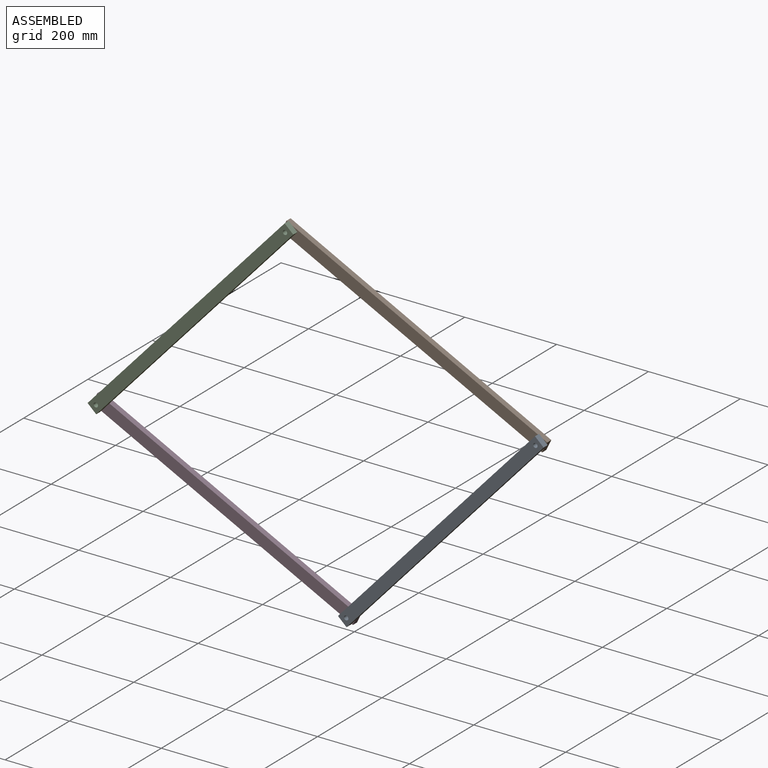
[diagram: assembled view]
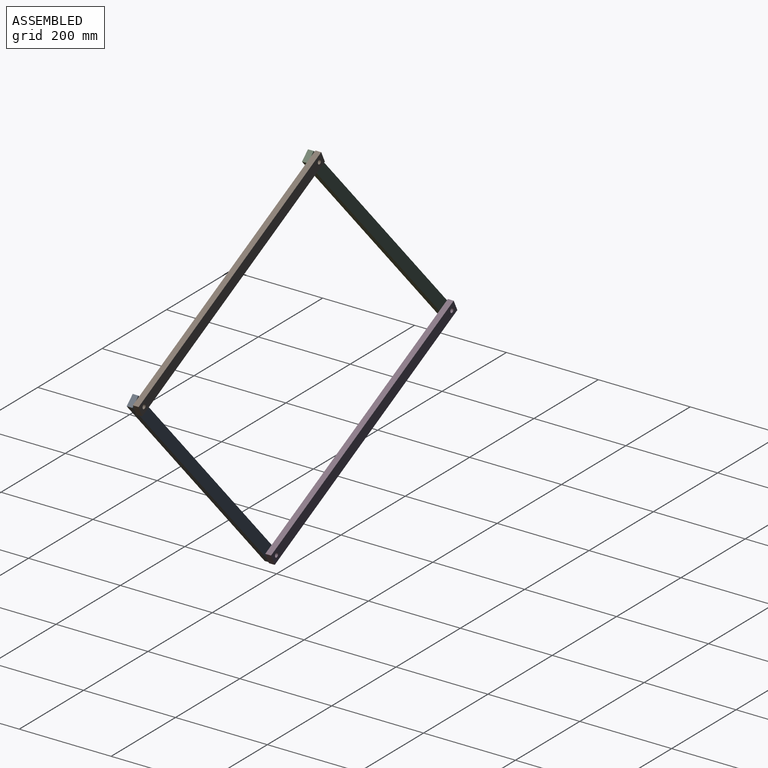
[diagram: assembled view, second angle]
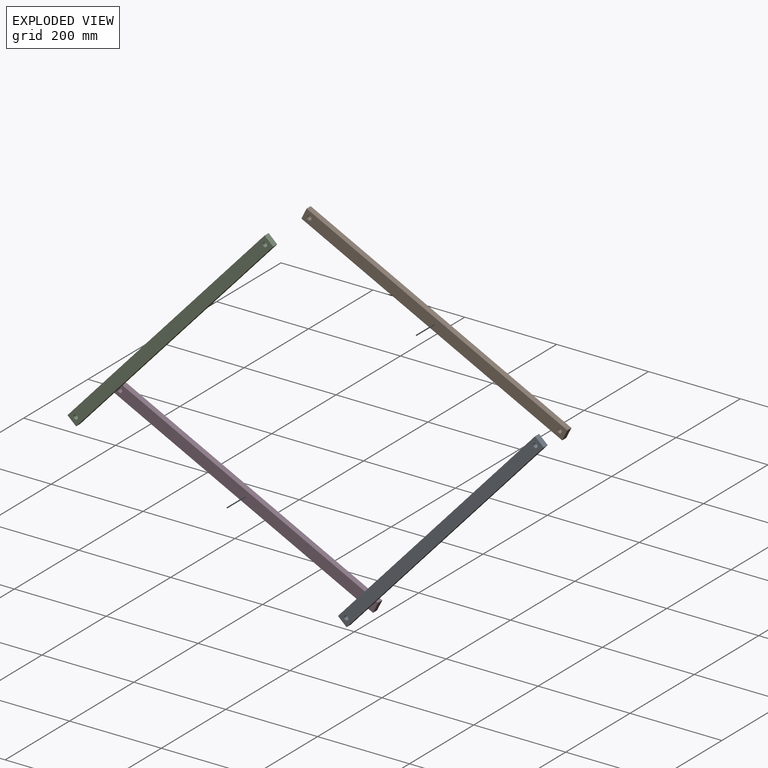
[diagram: exploded view]
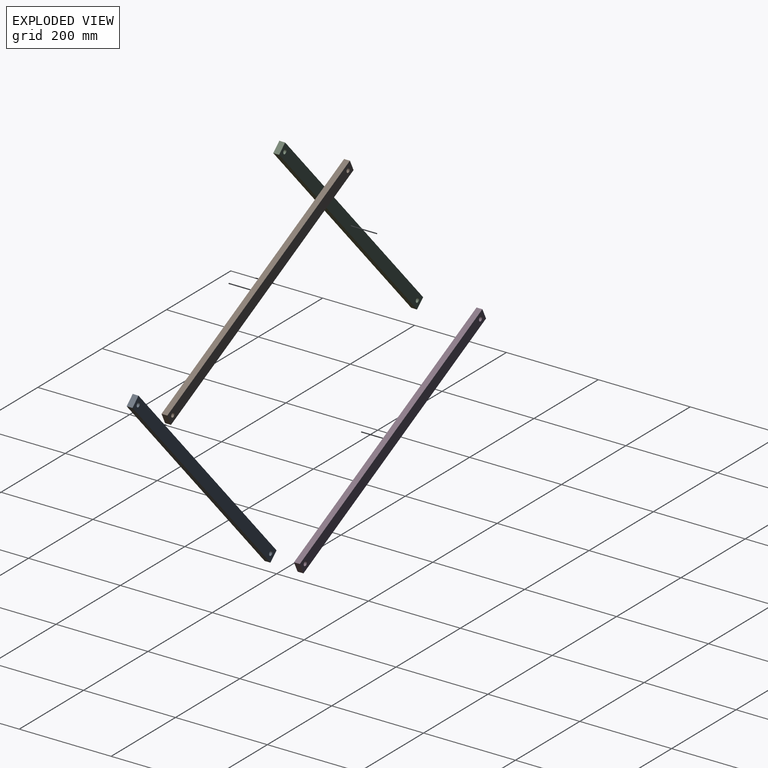
[diagram: exploded view, second angle]
ASSEMBLY  parts=4 mates=4
PART A: 8 faces, bbox 635x25.4x12.7 mm
  f0: plane 635x12.7mm, normal (0,1,0), area 8064.5mm2, adj f1,f5,f6,f7
  f1: plane 25.4x12.7mm, normal (-1,0,0), area 322.6mm2, adj f0,f2,f6,f7
  f2: plane 635x12.7mm, normal (0,-1,0), area 8064.5mm2, adj f1,f5,f6,f7
  f3: cylinder r=4.76mm len=12.7mm, axis (0,0,1), area 380mm2, adj f6,f7
  f4: cylinder r=4.76mm len=12.7mm, axis (0,0,1), area 380mm2, adj f6,f7
  f5: plane 25.4x12.7mm, normal (1,0,0), area 322.6mm2, adj f0,f2,f6,f7
  f6: plane 635x25.4mm, normal (0,0,-1), area 15986.5mm2, adj f0,f1,f2,f3,f4,f5
  f7: plane 635x25.4mm, normal (0,0,1), area 15986.5mm2, adj f0,f1,f2,f3,f4,f5
PART B: same geometry as A
PART C: same geometry as A
PART D: same geometry as A
PLACE A rot(axis=(0.85,-0.37,0.37),99.3deg) t=(403.27,-25.4,380.13)mm
PLACE B rot(axis=(0.17,-0.7,0.7),161.3deg) t=(-64.1,-12.7,733.35)mm
PLACE C rot(axis=(0.85,-0.37,0.37),99.3deg) t=(-141.69,-25.4,653.32)mm
PLACE D rot(axis=(0.17,-0.7,0.7),161.3deg) t=(-475.94,-12.7,283.91)mm
MATE revolute A.f3 <-> D.f3  axis (0,1,0) through (0,-12.7,0)mm
MATE revolute B.f4 <-> C.f4  axis (0,-1,0) through (-133.12,-12.7,722.64)mm
MATE revolute C.f3 <-> D.f4  axis (0,1,0) through (-544.96,-12.7,273.19)mm
MATE revolute A.f4 <-> B.f3  axis (0,1,0) through (411.84,-12.7,449.45)mm
